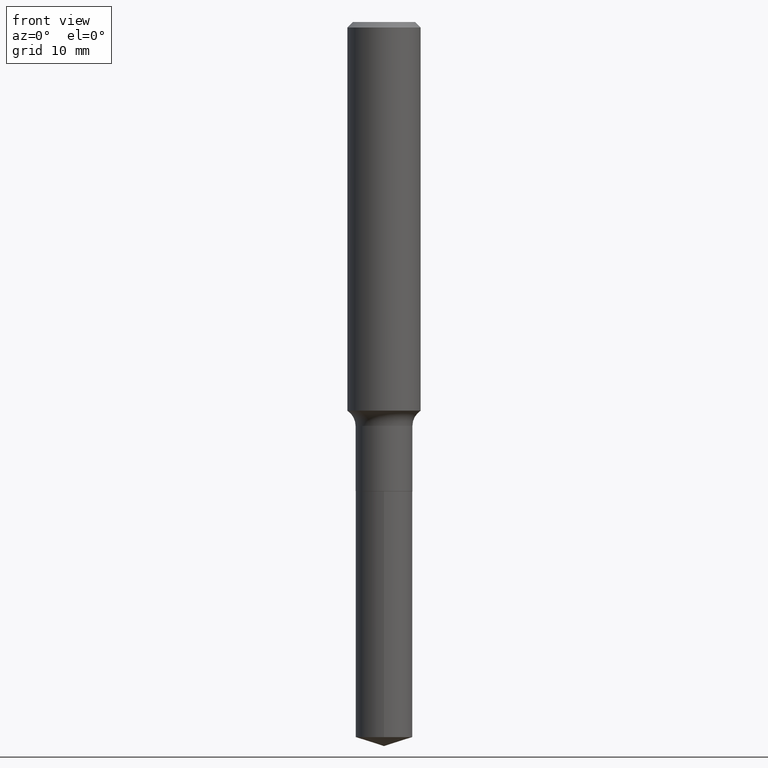
[diagram: clean part render]
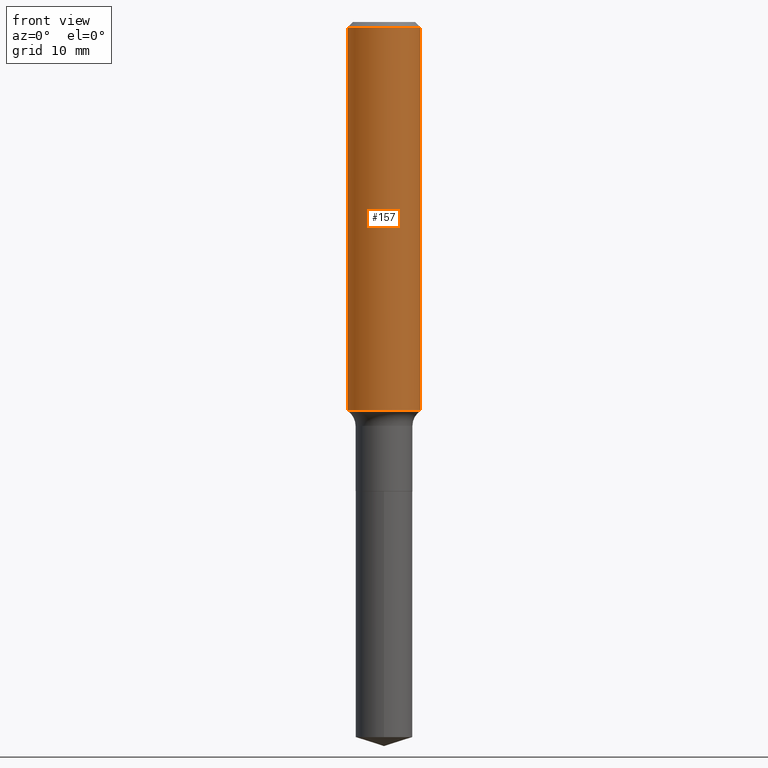
[diagram: same view with one face highlighted and labeled with its STEP entity id]
A machine part, front view. The second image highlights one B-rep face of the part: STEP entity #157.
In plain terms, the highlighted cylindrical surface (partial cylindrical patch) has radius 4.0005 mm, axis along (-0, 0, 1).
Its self-contained STEP definition (entity closure, byte-faithful):
#16 = FACE_OUTER_BOUND ( 'NONE', #177, .T. ) ;
#29 = CARTESIAN_POINT ( 'NONE',  ( 5.777420054612421980E-31, -8.248624663016985234E-17, -0.02362500000000015282 ) ) ;
#38 = CARTESIAN_POINT ( 'NONE',  ( 0.1575000000000000011, -1.182302868365756679E-15, -0.02362500000000015282 ) ) ;
#39 = EDGE_CURVE ( 'NONE', #399, #292, #101, .T. ) ;
#46 = CARTESIAN_POINT ( 'NONE',  ( 4.083023208467837425E-29, -5.829475028416973418E-15, -1.669628006761304961 ) ) ;
#55 = VERTEX_POINT ( 'NONE', #405 ) ;
#70 = DIRECTION ( 'NONE',  ( 1.000000000000000000, -6.982962677686265922E-15, 0.000000000000000000 ) ) ;
#87 = CYLINDRICAL_SURFACE ( 'NONE', #387, 0.1575000000000000844 ) ;
#99 = DIRECTION ( 'NONE',  ( 1.000000000000000000, -6.982962677686265922E-15, 0.000000000000000000 ) ) ;
#101 = LINE ( 'NONE', #249, #410 ) ;
#128 = ORIENTED_EDGE ( 'NONE', *, *, #488, .T. ) ;
#131 = ORIENTED_EDGE ( 'NONE', *, *, #206, .F. ) ;
#157 = ADVANCED_FACE ( 'NONE', ( #16 ), #87, .T. ) ;
#161 = CIRCLE ( 'NONE', #176, 0.1575000000000000011 ) ;
#172 = DIRECTION ( 'NONE',  ( -2.445468806185136597E-29, 3.491481338843145583E-15, 1.000000000000000000 ) ) ;
#176 = AXIS2_PLACEMENT_3D ( 'NONE', #29, #295, #99 ) ;
#177 = EDGE_LOOP ( 'NONE', ( #366, #128, #408, #131 ) ) ;
#206 = EDGE_CURVE ( 'NONE', #423, #292, #161, .T. ) ;
#233 = DIRECTION ( 'NONE',  ( -2.445468806185136877E-29, 3.491481338843145188E-15, 1.000000000000000000 ) ) ;
#249 = CARTESIAN_POINT ( 'NONE',  ( 0.1575000000000000844, -1.099816621735587677E-15, 7.679978421878603638E-30 ) ) ;
#276 = LINE ( 'NONE', #454, #453 ) ;
#277 = AXIS2_PLACEMENT_3D ( 'NONE', #46, #308, #70 ) ;
#284 = CARTESIAN_POINT ( 'NONE',  ( 0.000000000000000000, 0.000000000000000000, 0.000000000000000000 ) ) ;
#286 = EDGE_CURVE ( 'NONE', #55, #423, #276, .T. ) ;
#292 = VERTEX_POINT ( 'NONE', #38 ) ;
#295 = DIRECTION ( 'NONE',  ( -2.445468806185136597E-29, 3.491481338843145583E-15, 1.000000000000000000 ) ) ;
#308 = DIRECTION ( 'NONE',  ( -2.445468806185136597E-29, 3.491481338843145583E-15, 1.000000000000000000 ) ) ;
#313 = CARTESIAN_POINT ( 'NONE',  ( -0.1575000000000000011, -1.836875828701412226E-15, -0.02362500000000015282 ) ) ;
#366 = ORIENTED_EDGE ( 'NONE', *, *, #286, .F. ) ;
#387 = AXIS2_PLACEMENT_3D ( 'NONE', #284, #172, #391 ) ;
#391 = DIRECTION ( 'NONE',  ( 1.000000000000000000, -6.982962677686267499E-15, 4.876176775795936353E-29 ) ) ;
#396 = DIRECTION ( 'NONE',  ( -2.445468806185136877E-29, 3.491481338843145188E-15, 1.000000000000000000 ) ) ;
#399 = VERTEX_POINT ( 'NONE', #483 ) ;
#405 = CARTESIAN_POINT ( 'NONE',  ( -0.1575000000000002232, -4.710370219594814237E-15, -1.669628006761304961 ) ) ;
#408 = ORIENTED_EDGE ( 'NONE', *, *, #39, .T. ) ;
#410 = VECTOR ( 'NONE', #396, 39.37007874015748143 ) ;
#423 = VERTEX_POINT ( 'NONE', #313 ) ;
#453 = VECTOR ( 'NONE', #233, 39.37007874015748143 ) ;
#454 = CARTESIAN_POINT ( 'NONE',  ( -0.1575000000000000844, 1.119104808822158392E-15, -7.747322767151481189E-30 ) ) ;
#456 = CIRCLE ( 'NONE', #277, 0.1575000000000001954 ) ;
#483 = CARTESIAN_POINT ( 'NONE',  ( 0.1575000000000002232, -6.929291650152562476E-15, -1.669628006761304961 ) ) ;
#488 = EDGE_CURVE ( 'NONE', #55, #399, #456, .T. ) ;